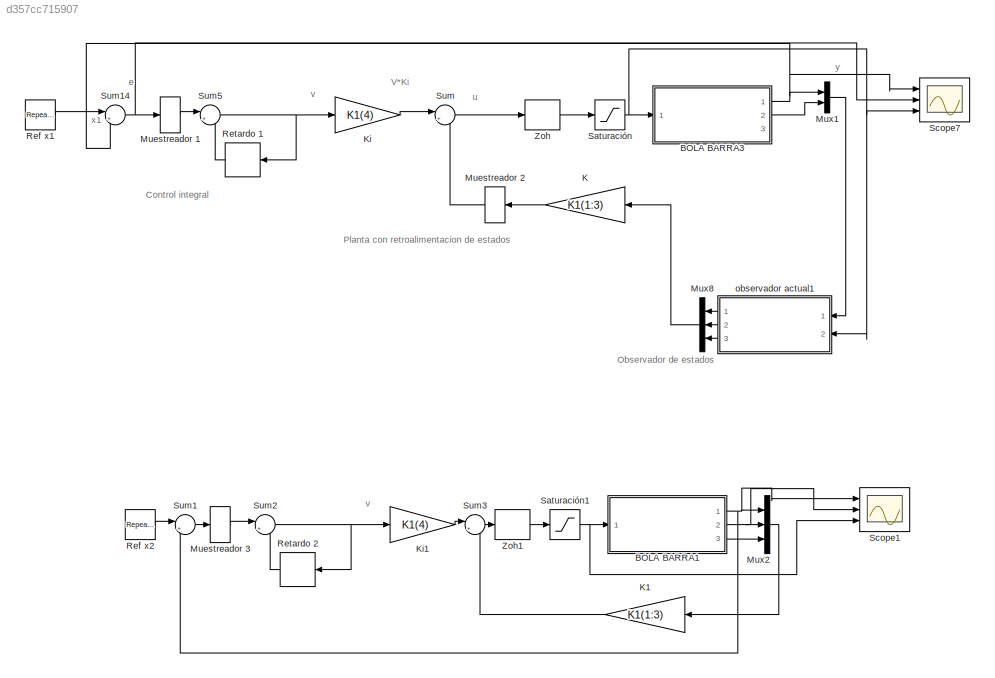
MODEL slx_d357cc715907
KIND model
CONFIG AbsTol = auto
CONFIG FixedStep = auto
CONFIG MaxStep = auto
CONFIG MinStep = auto
CONFIG RelTol = 1e-3
CONFIG SampleTimeConstraint = Unconstrained
CONFIG Solver = ode45
CONFIG SolverMode = Auto
CONFIG SolverName = ode45
CONFIG StartTime = 0.0
CONFIG StopTime = 144
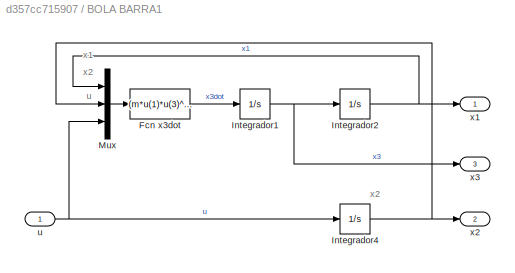
BLOCK [SubSystem] BOLA BARRA1
  Ports = [1, 3]
  RequestExecContextInheritance = off
BLOCK [Fcn] BOLA BARRA1/Fcn x3dot
  Expr = (m*u(1)*u(3)^2-m*g*sin(u(2))/(m+(Ib/R^2)))
BLOCK [Integrator] BOLA BARRA1/Integrador1
  Ports = [1, 1]
BLOCK [Integrator] BOLA BARRA1/Integrador2
  InitialCondition = -10.2e-3
  Ports = [1, 1]
BLOCK [Integrator] BOLA BARRA1/Integrador4
  Ports = [1, 1]
BLOCK [Mux] BOLA BARRA1/Mux
  DisplayOption = bar
  Inputs = 3
  Ports = [3, 1]
BLOCK [Inport] BOLA BARRA1/u
  IconDisplay = Port number
BLOCK [Outport] BOLA BARRA1/x1
  IconDisplay = Port number
BLOCK [Outport] BOLA BARRA1/x2
  IconDisplay = Port number
  Port = 2
BLOCK [Outport] BOLA BARRA1/x3
  IconDisplay = Port number
  Port = 3
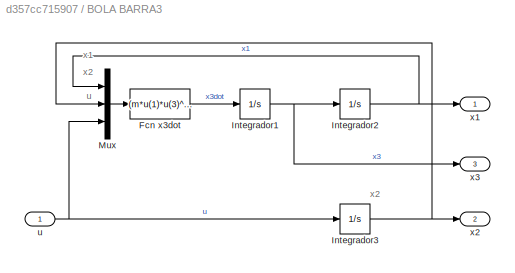
BLOCK [SubSystem] BOLA BARRA3
  Ports = [1, 3]
  RequestExecContextInheritance = off
BLOCK [Fcn] BOLA BARRA3/Fcn x3dot
  Expr = (m*u(1)*u(3)^2-m*g*sin(u(2))/(m+(Ib/R^2)))
BLOCK [Integrator] BOLA BARRA3/Integrador1
  Ports = [1, 1]
BLOCK [Integrator] BOLA BARRA3/Integrador2
  Ports = [1, 1]
BLOCK [Integrator] BOLA BARRA3/Integrador3
  Ports = [1, 1]
BLOCK [Mux] BOLA BARRA3/Mux
  DisplayOption = bar
  Inputs = 3
  Ports = [3, 1]
BLOCK [Inport] BOLA BARRA3/u
  IconDisplay = Port number
BLOCK [Outport] BOLA BARRA3/x1
  IconDisplay = Port number
BLOCK [Outport] BOLA BARRA3/x2
  IconDisplay = Port number
  Port = 2
BLOCK [Outport] BOLA BARRA3/x3
  IconDisplay = Port number
  Port = 3
BLOCK [Gain] K
  Gain = K1(1:3)
  Multiplication = Matrix(K*u)
  OutDataTypeStr = Inherit: Inherit via internal rule
  ParamDataTypeStr = Inherit: Inherit via internal rule
  SaturateOnIntegerOverflow = off
BLOCK [Gain] K1
  Gain = K1(1:3)
  Multiplication = Matrix(K*u)
  OutDataTypeStr = Inherit: Inherit via internal rule
  ParamDataTypeStr = Inherit: Inherit via internal rule
  SaturateOnIntegerOverflow = off
BLOCK [Gain] Ki
  Gain = K1(4)
  OutDataTypeStr = Inherit: Inherit via internal rule
  ParamDataTypeStr = Inherit: Inherit via internal rule
  SaturateOnIntegerOverflow = off
BLOCK [Gain] Ki1
  Gain = K1(4)
  OutDataTypeStr = Inherit: Inherit via internal rule
  ParamDataTypeStr = Inherit: Inherit via internal rule
  SaturateOnIntegerOverflow = off
BLOCK [DiscreteFilter] Muestreador 1
  Denominator = [1]
  InputPortMap = u0
  Ports = [1, 1]
  SampleTime = T
BLOCK [DiscreteFilter] Muestreador 2
  Denominator = [1]
  InputPortMap = u0
  Ports = [1, 1]
  SampleTime = T
BLOCK [DiscreteFilter] Muestreador 3
  Denominator = [1]
  InputPortMap = u0
  Ports = [1, 1]
  SampleTime = T
BLOCK [Mux] Mux1
  DisplayOption = bar
  Inputs = 2
  Ports = [2, 1]
BLOCK [Mux] Mux2
  DisplayOption = bar
  Inputs = 3
  Ports = [3, 1]
BLOCK [Mux] Mux8
  DisplayOption = bar
  Inputs = 3
  Ports = [3, 1]
BLOCK [Reference] Ref x1  REF=simulink/Sources/Repeating
Sequence
Stair
  ConRadixGroup = Best Precision: Vector-wise
  LockScale = off
  OutDataType = fixdt(0,8)
  OutDataTypeStr = double
  OutMax = []
  OutMin = []
  OutScaling = 2^-12
  OutValues = [0.2  0.4 -0.4 -0.1 -0.3].'
  OutputDataTypeScalingMode = double
  Ports = [0, 1]
  SourceBlock = simulink/Sources/Repeating\nSequence\nStair
  SourceType = Repeating Sequence Stair
  tsamp = 36*0.8
BLOCK [Reference] Ref x2  REF=simulink/Sources/Repeating
Sequence
Stair
  ConRadixGroup = Best Precision: Vector-wise
  LockScale = off
  OutDataType = fixdt(0,8)
  OutDataTypeStr = double
  OutMax = []
  OutMin = []
  OutScaling = 2^-12
  OutValues = [0.2  0.4 -0.4 -0.1 -0.3].'
  OutputDataTypeScalingMode = double
  Ports = [0, 1]
  SourceBlock = simulink/Sources/Repeating\nSequence\nStair
  SourceType = Repeating Sequence Stair
  tsamp = 36
BLOCK [Delay] Retardo 1
  DelayLength = 1
  InputPortMap = u0
  Ports = [1, 1]
  SampleTime = T
BLOCK [Delay] Retardo 2
  DelayLength = 1
  InputPortMap = u0
  Ports = [1, 1]
  SampleTime = T
BLOCK [Saturate] Saturación
  InputPortMap = u0
  LowerLimit = -2.11
  Ports = [1, 1]
  UpperLimit = 2.11
BLOCK [Saturate] Saturación1
  InputPortMap = u0
  LowerLimit = -2.11
  Ports = [1, 1]
  UpperLimit = 2.11
BLOCK [Scope] Scope1
  DataFormat = StructureWithTime
  Floating = off
  LimitDataPoints = off
  NumInputPorts = 3
  Ports = [3]
  SampleTime = 0
  SaveName = datos
  SaveToWorkspace = on
  YMax = 5~5~5
  YMin = -5~-5~-5
BLOCK [Scope] Scope7
  DataFormat = StructureWithTime
  Floating = off
  LimitDataPoints = off
  NumInputPorts = 3
  Ports = [3]
  SampleTime = 0
  SaveName = datos1
  SaveToWorkspace = on
  YMax = 5~5~5
  YMin = -5~-5~-5
BLOCK [Sum] Sum
  IconShape = round
  InputSameDT = off
  Inputs = |+-
  OutDataTypeStr = Inherit: Inherit via internal rule
  Ports = [2, 1]
  SaturateOnIntegerOverflow = off
BLOCK [Sum] Sum1
  IconShape = round
  InputSameDT = off
  Inputs = |+-
  OutDataTypeStr = Inherit: Inherit via internal rule
  Ports = [2, 1]
  SaturateOnIntegerOverflow = off
BLOCK [Sum] Sum14
  IconShape = round
  InputSameDT = off
  Inputs = |+-
  OutDataTypeStr = Inherit: Inherit via internal rule
  Ports = [2, 1]
  SaturateOnIntegerOverflow = off
BLOCK [Sum] Sum2
  IconShape = round
  InputSameDT = off
  Inputs = |++
  OutDataTypeStr = Inherit: Inherit via internal rule
  Ports = [2, 1]
  SaturateOnIntegerOverflow = off
BLOCK [Sum] Sum3
  IconShape = round
  InputSameDT = off
  Inputs = |+-
  OutDataTypeStr = Inherit: Inherit via internal rule
  Ports = [2, 1]
  SaturateOnIntegerOverflow = off
BLOCK [Sum] Sum5
  IconShape = round
  InputSameDT = off
  Inputs = |++
  OutDataTypeStr = Inherit: Inherit via internal rule
  Ports = [2, 1]
  SaturateOnIntegerOverflow = off
BLOCK [ZeroOrderHold] Zoh
  SampleTime = T
BLOCK [ZeroOrderHold] Zoh1
  SampleTime = T
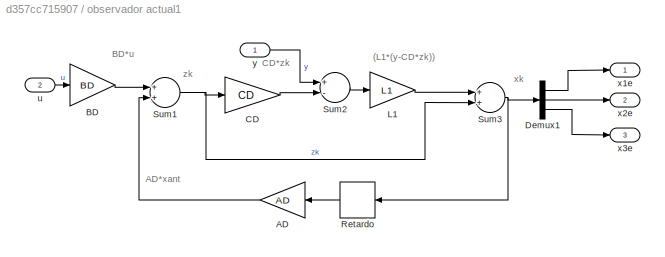
BLOCK [SubSystem] observador actual1
  Ports = [2, 3]
  RequestExecContextInheritance = off
BLOCK [Gain] observador actual1/AD
  Gain = AD
  Multiplication = Matrix(K*u)
  OutDataTypeStr = Inherit: Inherit via internal rule
  ParamDataTypeStr = Inherit: Inherit via internal rule
  SaturateOnIntegerOverflow = off
BLOCK [Gain] observador actual1/BD
  Gain = BD
  Multiplication = Matrix(K*u)
  OutDataTypeStr = Inherit: Inherit via internal rule
  ParamDataTypeStr = Inherit: Inherit via internal rule
  SaturateOnIntegerOverflow = off
BLOCK [Gain] observador actual1/CD
  Gain = CD
  Multiplication = Matrix(K*u)
  OutDataTypeStr = Inherit: Inherit via internal rule
  ParamDataTypeStr = Inherit: Inherit via internal rule
  SaturateOnIntegerOverflow = off
BLOCK [Demux] observador actual1/Demux1
  DisplayOption = bar
  Outputs = 3
  Ports = [1, 3]
BLOCK [Gain] observador actual1/L1
  Gain = L1
  Multiplication = Matrix(K*u)
  OutDataTypeStr = Inherit: Inherit via internal rule
  ParamDataTypeStr = Inherit: Inherit via internal rule
  SaturateOnIntegerOverflow = off
BLOCK [Delay] observador actual1/Retardo
  DelayLength = 1
  InitialCondition = [0 0 0]
  InputPortMap = u0
  Ports = [1, 1]
  SampleTime = T
BLOCK [Sum] observador actual1/Sum1
  InputSameDT = off
  OutDataTypeStr = Inherit: Inherit via internal rule
  Ports = [2, 1]
  SaturateOnIntegerOverflow = off
BLOCK [Sum] observador actual1/Sum2
  InputSameDT = off
  Inputs = +-
  OutDataTypeStr = Inherit: Inherit via internal rule
  Ports = [2, 1]
  SaturateOnIntegerOverflow = off
BLOCK [Sum] observador actual1/Sum3
  InputSameDT = off
  OutDataTypeStr = Inherit: Inherit via internal rule
  Ports = [2, 1]
  SaturateOnIntegerOverflow = off
BLOCK [Inport] observador actual1/u
  IconDisplay = Port number
  Port = 2
BLOCK [Outport] observador actual1/x1e
  IconDisplay = Port number
BLOCK [Outport] observador actual1/x2e
  IconDisplay = Port number
  Port = 2
BLOCK [Outport] observador actual1/x3e
  IconDisplay = Port number
  Port = 3
BLOCK [Inport] observador actual1/y
  IconDisplay = Port number
ANNOTATION (root): e
ANNOTATION (root): u
ANNOTATION (root): v
ANNOTATION (root): x1
ANNOTATION (root): y
ANNOTATION (root): Control integral
ANNOTATION (root): Observador de estados
ANNOTATION (root): Planta con retroalimentacion de estados
ANNOTATION (root): V*Ki
ANNOTATION BOLA BARRA1: u
ANNOTATION BOLA BARRA1: x1
ANNOTATION BOLA BARRA1: x2
ANNOTATION BOLA BARRA3: u
ANNOTATION BOLA BARRA3: x1
ANNOTATION BOLA BARRA3: x2
ANNOTATION observador actual1: (L1*(y-CD*zk))
ANNOTATION observador actual1: AD*xant
ANNOTATION observador actual1: BD*u
ANNOTATION observador actual1: CD*zk
ANNOTATION observador actual1: xk
ANNOTATION observador actual1: zk
LINE BOLA BARRA1/Fcn x3dot:1 -> BOLA BARRA1/Integrador1:1
NET BOLA BARRA1/Integrador1:1 -> BOLA BARRA1/Integrador2:1, BOLA BARRA1/x3:1
NET BOLA BARRA1/Integrador2:1 -> BOLA BARRA1/Mux:1, BOLA BARRA1/x1:1
NET BOLA BARRA1/Integrador4:1 -> BOLA BARRA1/Mux:2, BOLA BARRA1/x2:1
LINE BOLA BARRA1/Mux:1 -> BOLA BARRA1/Fcn x3dot:1
NET BOLA BARRA1/u:1 -> BOLA BARRA1/Integrador4:1, BOLA BARRA1/Mux:3
NET BOLA BARRA1:1 -> Mux2:1, Scope1:1, Sum1:2
NET BOLA BARRA1:2 -> Mux2:2, Scope1:2
LINE BOLA BARRA1:3 -> Mux2:3
LINE BOLA BARRA3/Fcn x3dot:1 -> BOLA BARRA3/Integrador1:1
NET BOLA BARRA3/Integrador1:1 -> BOLA BARRA3/Integrador2:1, BOLA BARRA3/x3:1
NET BOLA BARRA3/Integrador2:1 -> BOLA BARRA3/Mux:1, BOLA BARRA3/x1:1
NET BOLA BARRA3/Integrador3:1 -> BOLA BARRA3/Mux:2, BOLA BARRA3/x2:1
LINE BOLA BARRA3/Mux:1 -> BOLA BARRA3/Fcn x3dot:1
NET BOLA BARRA3/u:1 -> BOLA BARRA3/Integrador3:1, BOLA BARRA3/Mux:3
NET BOLA BARRA3:1 -> Mux1:1, Scope7:1, Sum14:2
LINE BOLA BARRA3:2 -> Mux1:2
LINE K1:1 -> Sum3:2
LINE K:1 -> Muestreador 2:1
LINE Ki1:1 -> Sum3:1
LINE Ki:1 -> Sum:1
LINE Muestreador 1:1 -> Sum5:1
LINE Muestreador 2:1 -> Sum:2
LINE Muestreador 3:1 -> Sum2:1
LINE Mux1:1 -> observador actual1:1
LINE Mux2:1 -> K1:1
LINE Mux8:1 -> K:1
LINE Ref x1:1 -> Sum14:1
LINE Ref x2:1 -> Sum1:1
LINE Retardo 1:1 -> Sum5:2
LINE Retardo 2:1 -> Sum2:2
NET Saturación1:1 -> BOLA BARRA1:1, Scope1:3
NET Saturación:1 -> BOLA BARRA3:1, Scope7:3, observador actual1:2
NET Sum14:1 -> Muestreador 1:1, Scope7:2
LINE Sum1:1 -> Muestreador 3:1
NET Sum2:1 -> Ki1:1, Retardo 2:1
LINE Sum3:1 -> Zoh1:1
NET Sum5:1 -> Ki:1, Retardo 1:1
LINE Sum:1 -> Zoh:1
LINE Zoh1:1 -> Saturación1:1
LINE Zoh:1 -> Saturación:1
LINE observador actual1/AD:1 -> observador actual1/Sum1:2
LINE observador actual1/BD:1 -> observador actual1/Sum1:1
LINE observador actual1/CD:1 -> observador actual1/Sum2:2
LINE observador actual1/Demux1:1 -> observador actual1/x1e:1
LINE observador actual1/Demux1:2 -> observador actual1/x2e:1
LINE observador actual1/Demux1:3 -> observador actual1/x3e:1
LINE observador actual1/L1:1 -> observador actual1/Sum3:1
LINE observador actual1/Retardo:1 -> observador actual1/AD:1
NET observador actual1/Sum1:1 -> observador actual1/CD:1, observador actual1/Sum3:2
LINE observador actual1/Sum2:1 -> observador actual1/L1:1
NET observador actual1/Sum3:1 -> observador actual1/Demux1:1, observador actual1/Retardo:1
LINE observador actual1/u:1 -> observador actual1/BD:1
LINE observador actual1/y:1 -> observador actual1/Sum2:1
LINE observador actual1:1 -> Mux8:1
LINE observador actual1:2 -> Mux8:2
LINE observador actual1:3 -> Mux8:3
note: NET lines group one-source signal fan-out (src -> all destinations, sorted); 1:1 wires keep LINE
